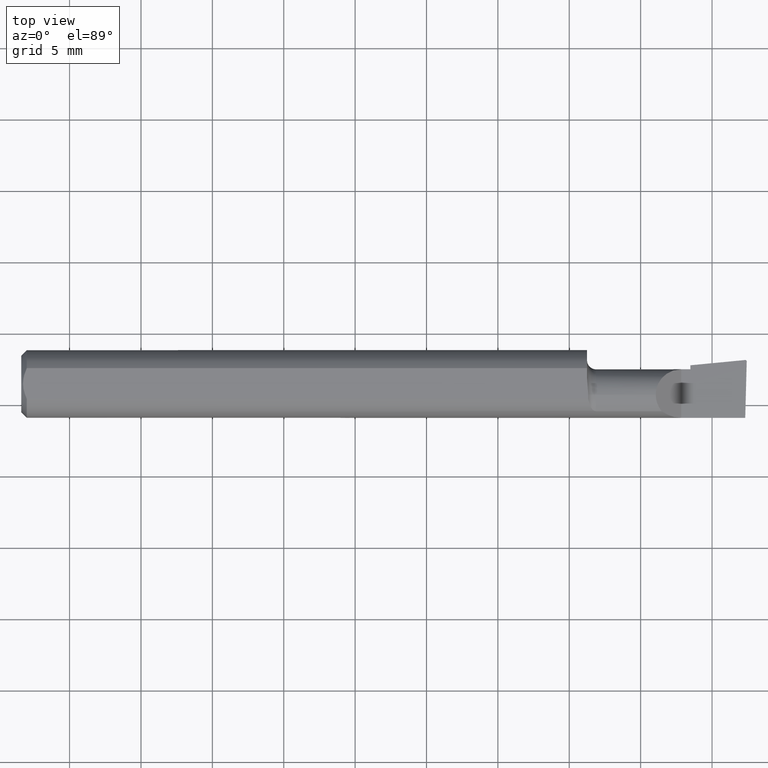
[diagram: clean part render]
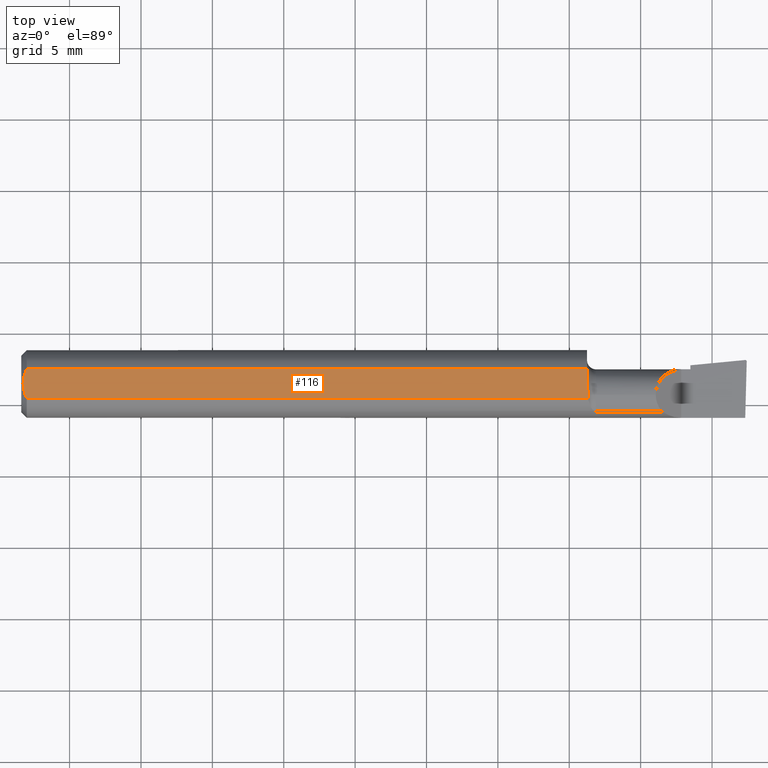
[diagram: same view with one face highlighted and labeled with its STEP entity id]
A machine part, top view. The second image highlights one B-rep face of the part: STEP entity #116.
In plain terms, the highlighted planar face has unit normal (0, 0, -1).
Its self-contained STEP definition (entity closure, byte-faithful):
#9 = B_SPLINE_CURVE_WITH_KNOTS ( 'NONE', 3,
 ( #508, #714, #1181, #898, #1175, #707 ),
 .UNSPECIFIED., .F., .F.,
 ( 4, 2, 4 ),
 ( 0.0002910397895286466062, 0.0008917741008288163421, 0.001492508412128986132 ),
 .UNSPECIFIED. ) ;
#11 = DIRECTION ( 'NONE',  ( -1.000000000000000000, 0.000000000000000000, 0.000000000000000000 ) ) ;
#17 = CARTESIAN_POINT ( 'NONE',  ( 50.79999999999999716, -1.069216311136338415, 2.123439999999999994 ) ) ;
#54 = CARTESIAN_POINT ( 'NONE',  ( 39.62400000000000233, 1.217508106000000145, 2.123439999999999994 ) ) ;
#92 = CARTESIAN_POINT ( 'NONE',  ( 0.3809999999999993947, 1.069216311136338193, 2.123439999999999994 ) ) ;
#99 = CARTESIAN_POINT ( 'NONE',  ( 39.70761519933896722, -0.8743793895717626441, 2.123439999999999994 ) ) ;
#104 = CARTESIAN_POINT ( 'NONE',  ( 0.1269999999999935625, 2.600463940305394618E-16, 2.123439999999999994 ) ) ;
#106 = EDGE_CURVE ( 'NONE', #517, #732, #151, .T. ) ;
#116 = ADVANCED_FACE ( 'NONE', ( #1054 ), #490, .F. ) ;
#151 = B_SPLINE_CURVE_WITH_KNOTS ( 'NONE', 3,
 ( #832, #1203, #578, #980, #780, #407 ),
 .UNSPECIFIED., .F., .F.,
 ( 4, 2, 4 ),
 ( 0.002595420175440010368, 0.003143963582281759754, 0.003692506989123509140 ),
 .UNSPECIFIED. ) ;
#183 = CARTESIAN_POINT ( 'NONE',  ( 39.69667307896505548, -1.069216311136338415, 2.123439999999999994 ) ) ;
#212 = DIRECTION ( 'NONE',  ( -0.000000000000000000, 0.000000000000000000, -1.000000000000000000 ) ) ;
#224 = VERTEX_POINT ( 'NONE', #604 ) ;
#229 = AXIS2_PLACEMENT_3D ( 'NONE', #1243, #212, #11 ) ;
#235 = ORIENTED_EDGE ( 'NONE', *, *, #314, .T. ) ;
#294 = CARTESIAN_POINT ( 'NONE',  ( 39.62400000000000233, 1.069216311136338193, 2.123439999999999994 ) ) ;
#314 = EDGE_CURVE ( 'NONE', #724, #454, #9, .T. ) ;
#327 = DIRECTION ( 'NONE',  ( 1.000000000000000000, 0.000000000000000000, 0.000000000000000000 ) ) ;
#342 = VECTOR ( 'NONE', #767, 1000.000000000000000 ) ;
#388 = CARTESIAN_POINT ( 'NONE',  ( 0.2408856689715067889, 0.7256211825147690364, 2.123440000000000438 ) ) ;
#407 = CARTESIAN_POINT ( 'NONE',  ( 0.3809999999992708108, -1.069216311139973508, 2.123439999999999994 ) ) ;
#415 = LINE ( 'NONE', #803, #587 ) ;
#454 = VERTEX_POINT ( 'NONE', #1033 ) ;
#465 = ORIENTED_EDGE ( 'NONE', *, *, #694, .F. ) ;
#490 = PLANE ( 'NONE',  #229 ) ;
#508 = CARTESIAN_POINT ( 'NONE',  ( 39.70761519933896722, -0.7772399999999999309, 2.123439999999999994 ) ) ;
#515 = VECTOR ( 'NONE', #820, 1000.000000000000000 ) ;
#517 = VERTEX_POINT ( 'NONE', #1213 ) ;
#520 = ORIENTED_EDGE ( 'NONE', *, *, #964, .T. ) ;
#526 = EDGE_CURVE ( 'NONE', #1098, #454, #542, .T. ) ;
#542 = LINE ( 'NONE', #54, #342 ) ;
#553 = ORIENTED_EDGE ( 'NONE', *, *, #526, .F. ) ;
#559 = ORIENTED_EDGE ( 'NONE', *, *, #1227, .T. ) ;
#570 = CARTESIAN_POINT ( 'NONE',  ( 39.70761519933896722, -0.7772399999999999309, 2.123439999999999994 ) ) ;
#578 = CARTESIAN_POINT ( 'NONE',  ( 0.1519414030230686885, -0.3692016290386008204, 2.123440000000000438 ) ) ;
#586 = EDGE_CURVE ( 'NONE', #224, #732, #906, .T. ) ;
#587 = VECTOR ( 'NONE', #327, 1000.000000000000000 ) ;
#604 = CARTESIAN_POINT ( 'NONE',  ( 39.69667307896505548, -1.069216311136338415, 2.123439999999999994 ) ) ;
#624 = ORIENTED_EDGE ( 'NONE', *, *, #106, .T. ) ;
#650 = CARTESIAN_POINT ( 'NONE',  ( 0.3809999999992708108, -1.069216311139973508, 2.123439999999999994 ) ) ;
#661 = CARTESIAN_POINT ( 'NONE',  ( 39.70363976002455075, -0.9717215608026433804, 2.123439999999999994 ) ) ;
#694 = EDGE_CURVE ( 'NONE', #879, #1098, #415, .T. ) ;
#707 = CARTESIAN_POINT ( 'NONE',  ( 39.62400000000000233, 0.4214247264352102840, 2.123439999999999994 ) ) ;
#714 = CARTESIAN_POINT ( 'NONE',  ( 39.70761519933896722, -0.5767348924715055558, 2.123439999999999550 ) ) ;
#720 = B_SPLINE_CURVE_WITH_KNOTS ( 'NONE', 3,
 ( #974, #1231, #388, #962, #769, #104 ),
 .UNSPECIFIED., .F., .F.,
 ( 4, 2, 4 ),
 ( 0.001498230153270103992, 0.002046825164355057288, 0.002595420175440010368 ),
 .UNSPECIFIED. ) ;
#724 = VERTEX_POINT ( 'NONE', #1034 ) ;
#732 = VERTEX_POINT ( 'NONE', #650 ) ;
#767 = DIRECTION ( 'NONE',  ( 0.000000000000000000, -1.000000000000000000, 0.000000000000000000 ) ) ;
#769 = CARTESIAN_POINT ( 'NONE',  ( 0.1269999999999934515, 0.1864539211222291382, 2.123439999999999994 ) ) ;
#780 = CARTESIAN_POINT ( 'NONE',  ( 0.3054270817402713889, -0.9011772745863527723, 2.123439999999999994 ) ) ;
#803 = CARTESIAN_POINT ( 'NONE',  ( 50.79999999999999716, 1.069216311136338193, 2.123439999999999994 ) ) ;
#814 = EDGE_LOOP ( 'NONE', ( #553, #465, #520, #624, #1082, #559, #235 ) ) ;
#820 = DIRECTION ( 'NONE',  ( -1.000000000000000000, -0.000000000000000000, -0.000000000000000000 ) ) ;
#832 = CARTESIAN_POINT ( 'NONE',  ( 0.1269999999999935625, 2.600463940305394618E-16, 2.123439999999999994 ) ) ;
#879 = VERTEX_POINT ( 'NONE', #92 ) ;
#898 = CARTESIAN_POINT ( 'NONE',  ( 39.64662066276544294, 0.02166918319375958982, 2.123439999999999550 ) ) ;
#906 = LINE ( 'NONE', #17, #515 ) ;
#962 = CARTESIAN_POINT ( 'NONE',  ( 0.1517920376457574660, 0.3685116538767561067, 2.123439999999999550 ) ) ;
#964 = EDGE_CURVE ( 'NONE', #879, #517, #720, .T. ) ;
#974 = CARTESIAN_POINT ( 'NONE',  ( 0.3809999999999993947, 1.069216311136338193, 2.123439999999999994 ) ) ;
#980 = CARTESIAN_POINT ( 'NONE',  ( 0.2408856125318506181, -0.7255295214671837467, 2.123439999999999550 ) ) ;
#989 = B_SPLINE_CURVE_WITH_KNOTS ( 'NONE', 3,
 ( #183, #661, #99, #570 ),
 .UNSPECIFIED., .F., .F.,
 ( 4, 4 ),
 ( 4.336808689942017736E-19, 0.0002910397895286466062 ),
 .UNSPECIFIED. ) ;
#1033 = CARTESIAN_POINT ( 'NONE',  ( 39.62400000000000233, 0.4214247264352102840, 2.123439999999999994 ) ) ;
#1034 = CARTESIAN_POINT ( 'NONE',  ( 39.70761519933896722, -0.7772399999999999309, 2.123439999999999994 ) ) ;
#1054 = FACE_OUTER_BOUND ( 'NONE', #814, .T. ) ;
#1082 = ORIENTED_EDGE ( 'NONE', *, *, #586, .F. ) ;
#1098 = VERTEX_POINT ( 'NONE', #294 ) ;
#1175 = CARTESIAN_POINT ( 'NONE',  ( 39.62400000000000233, 0.2211257336660613360, 2.123439999999999994 ) ) ;
#1181 = CARTESIAN_POINT ( 'NONE',  ( 39.68914375022770713, -0.3771719880055768859, 2.123440000000000438 ) ) ;
#1203 = CARTESIAN_POINT ( 'NONE',  ( 0.1269999999999933682, -0.1864363821120345599, 2.123439999999999550 ) ) ;
#1213 = CARTESIAN_POINT ( 'NONE',  ( 0.1269999999999935625, 2.600463940305394618E-16, 2.123439999999999994 ) ) ;
#1227 = EDGE_CURVE ( 'NONE', #224, #724, #989, .T. ) ;
#1231 = CARTESIAN_POINT ( 'NONE',  ( 0.3056025758495096167, 0.9015674918982187203, 2.123439999999999550 ) ) ;
#1243 = CARTESIAN_POINT ( 'NONE',  ( 0.000000000000000000, 1.217508106000000145, 2.123439999999999994 ) ) ;